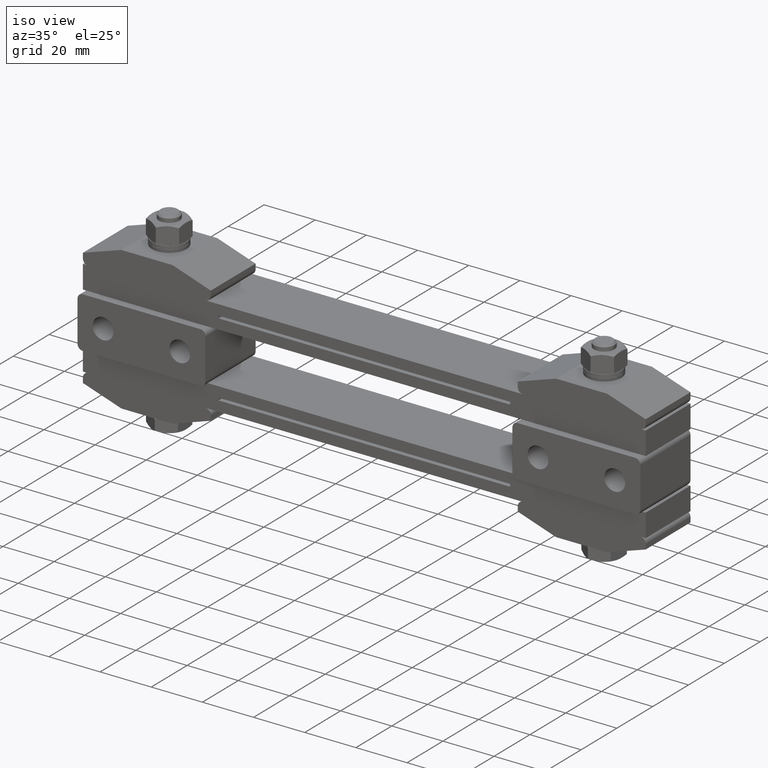
[diagram: clean part render]
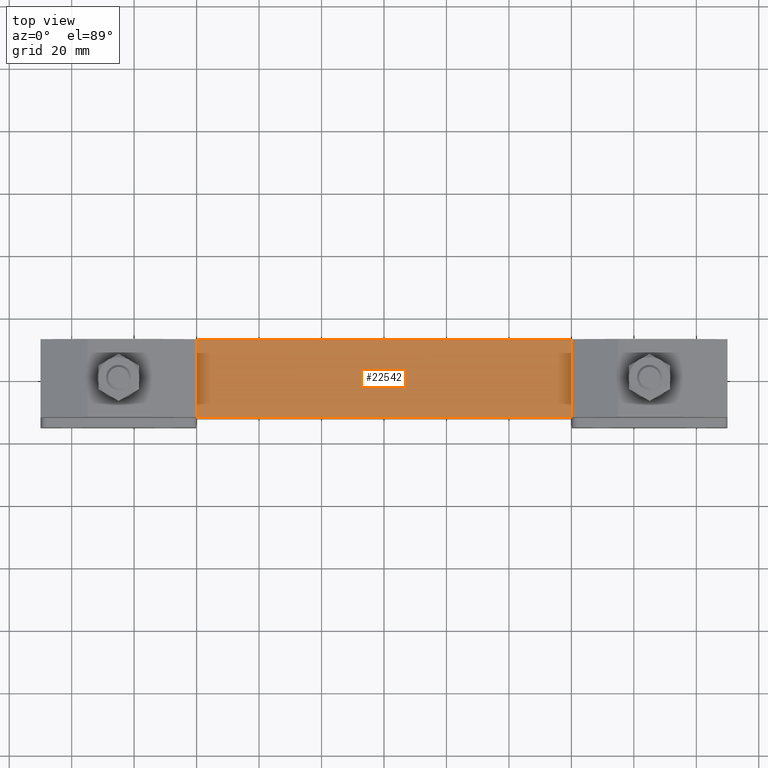
[diagram: tour spotlight — one face highlighted and labeled with its STEP entity id]
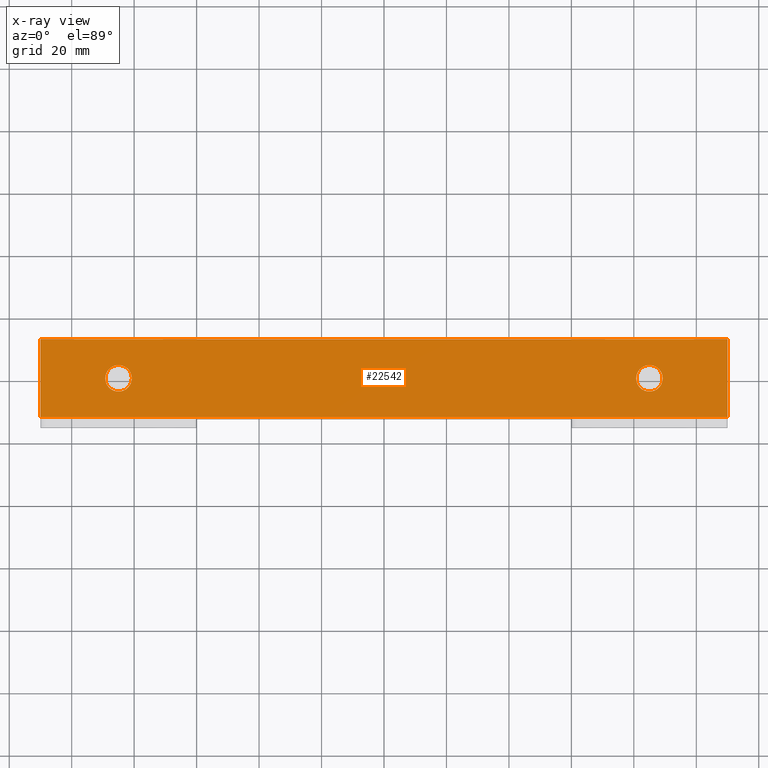
[diagram: x-ray of the same camera — body ghosted, this tour face saturated]
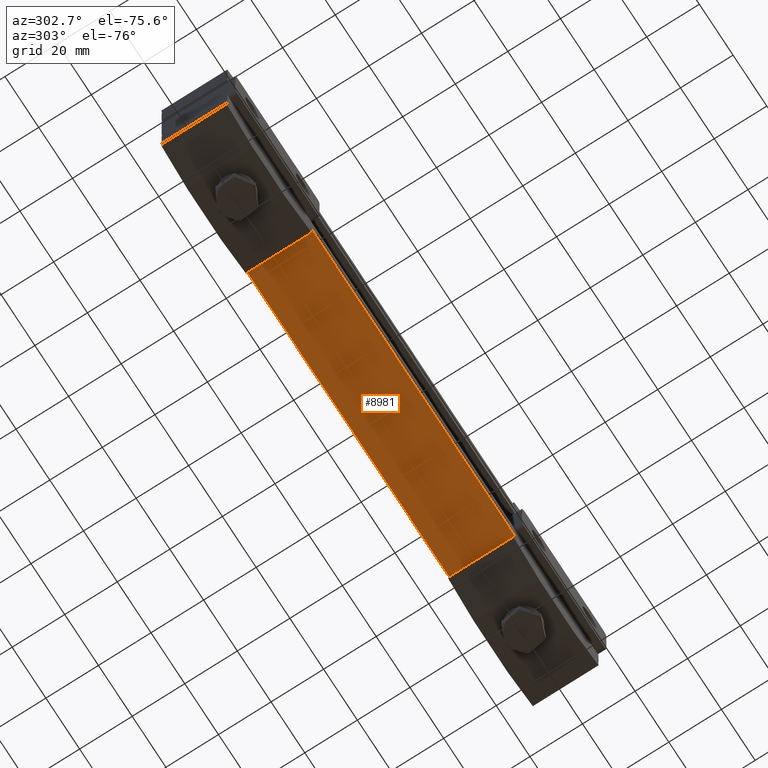
[diagram: tour spotlight — one face highlighted and labeled with its STEP entity id]
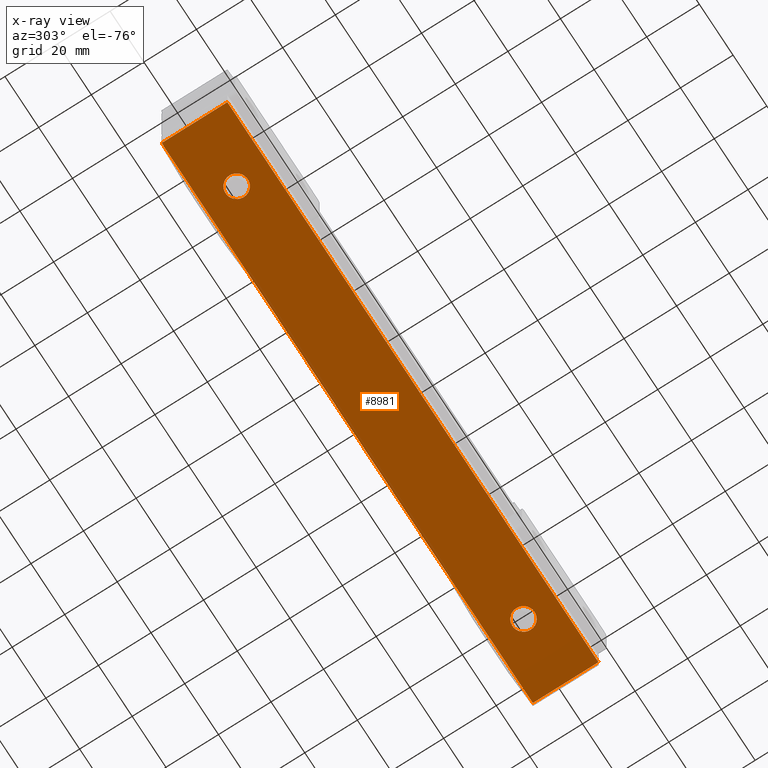
[diagram: x-ray of the same camera — body ghosted, this tour face saturated]
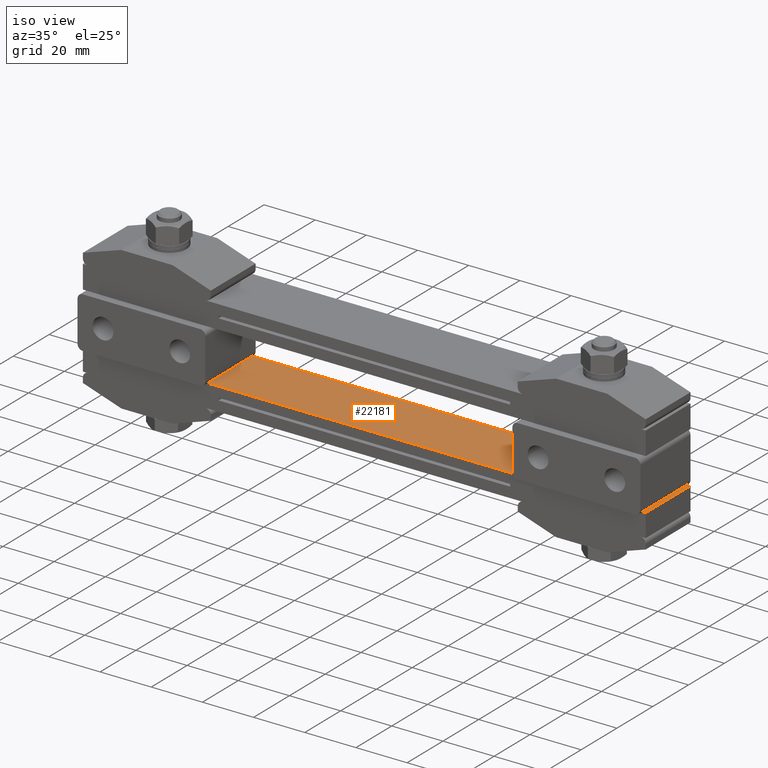
[diagram: tour spotlight — one face highlighted and labeled with its STEP entity id]
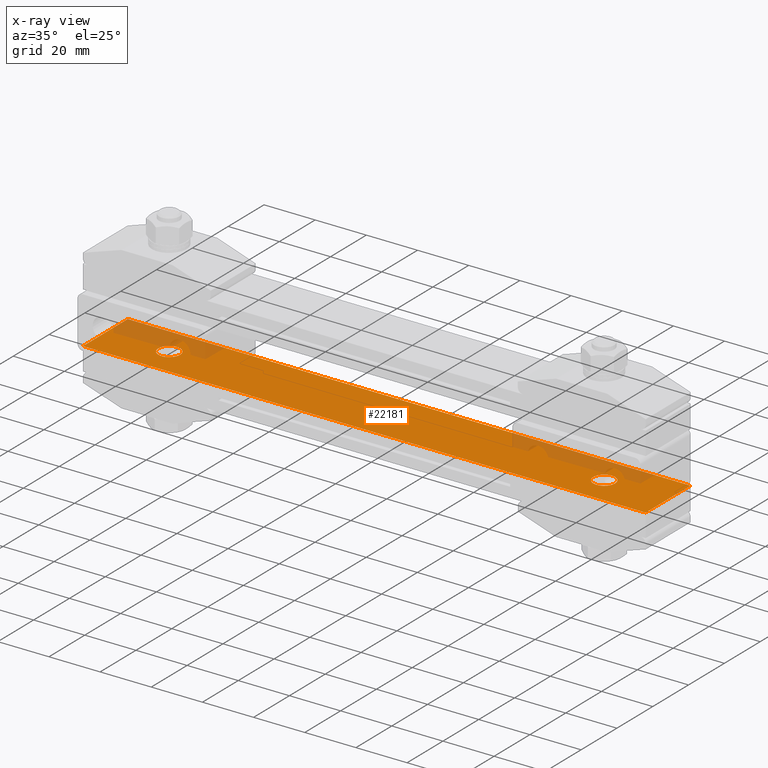
[diagram: x-ray of the same camera — body ghosted, this tour face saturated]
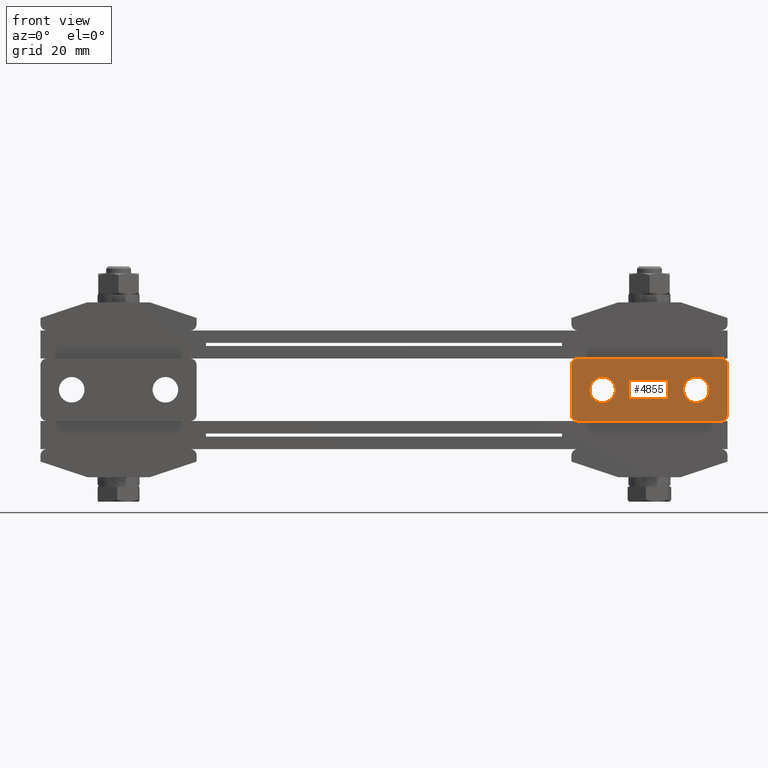
[diagram: tour spotlight — one face highlighted and labeled with its STEP entity id]
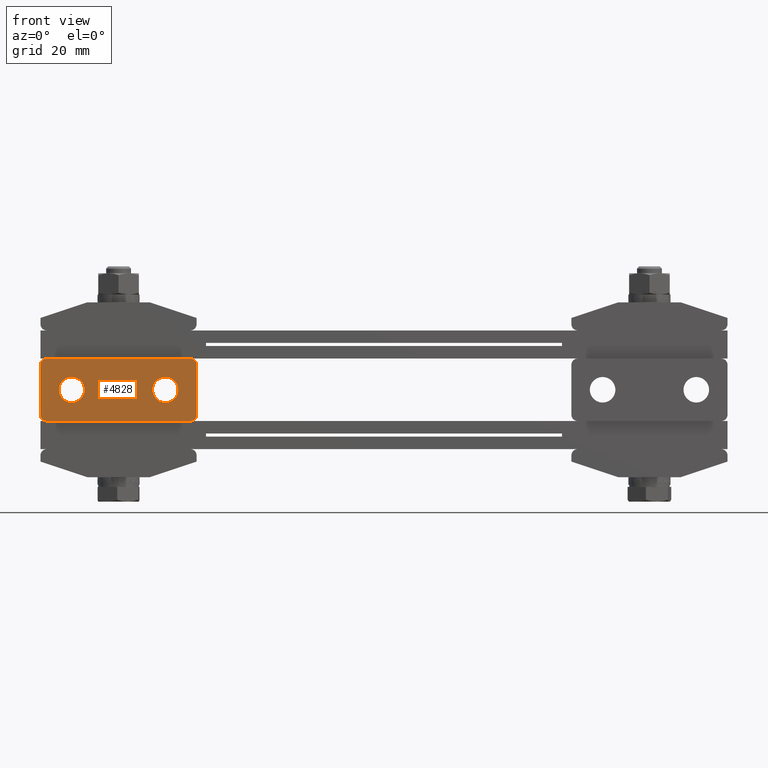
[diagram: tour spotlight — one face highlighted and labeled with its STEP entity id]
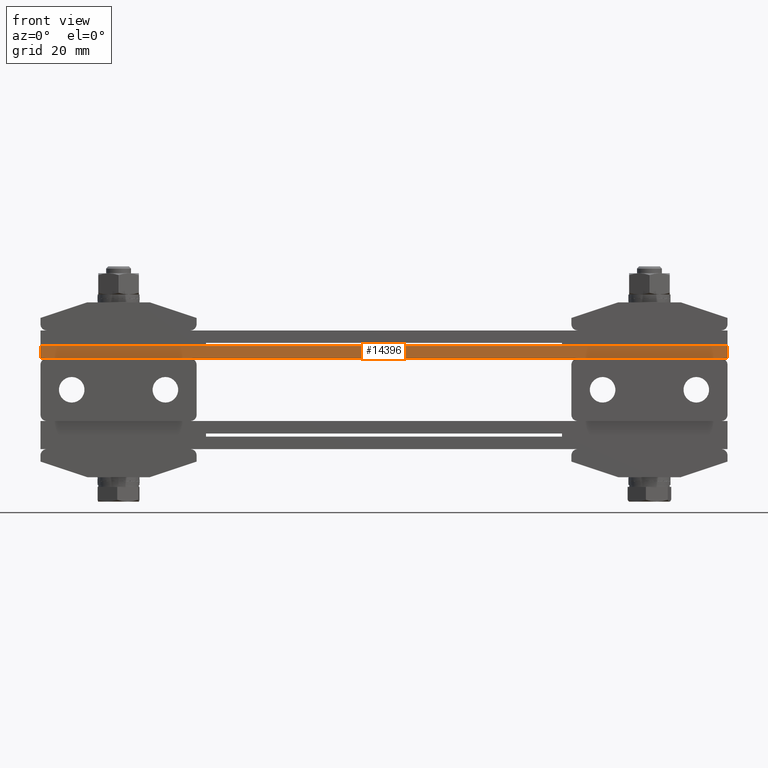
[diagram: tour spotlight — one face highlighted and labeled with its STEP entity id]
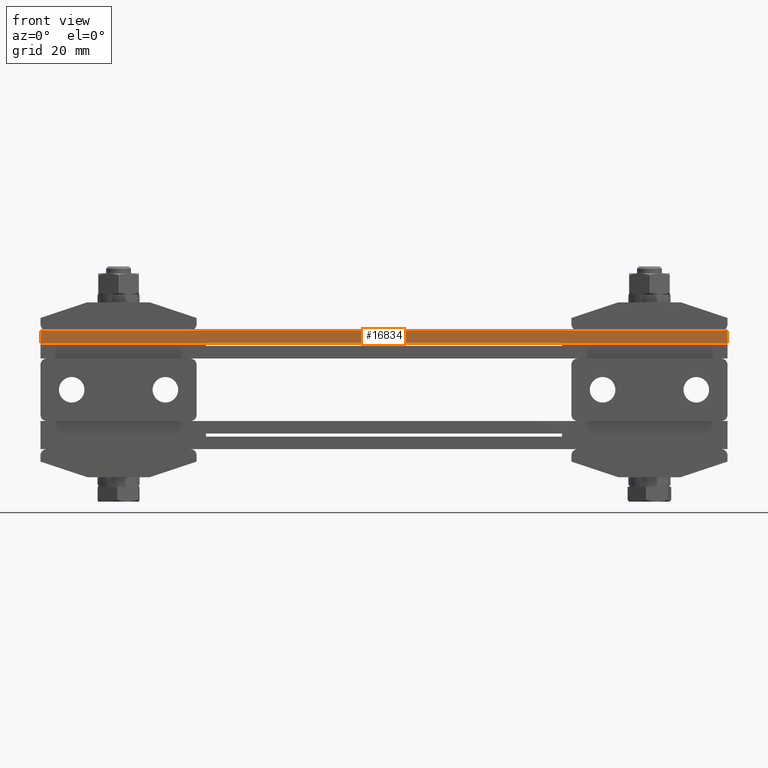
[diagram: tour spotlight — one face highlighted and labeled with its STEP entity id]
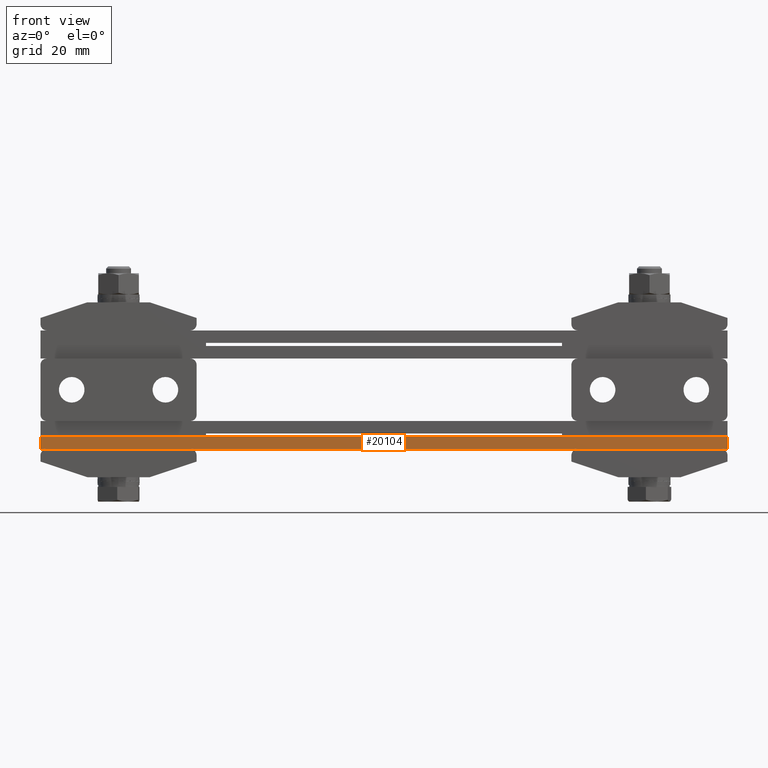
[diagram: tour spotlight — one face highlighted and labeled with its STEP entity id]
A machine part: a face-by-face anatomy tour. The part has 746 B-rep faces; the first image is the clean iso view, then the 8 largest visible faces are spotlighted one at a time (largest first), each with its STEP entity span.

Face 1 — top view, entity #22542. An x-ray twin of the same camera follows (body ghosted, this face saturated) — the face is partly hidden behind the body. In plain terms, the highlighted planar face has unit normal (0, 0, 1).
Definition (entity closure, byte-faithful):
#215 = CARTESIAN_POINT ( 'NONE',  ( -85.00000000000000000, -1.302668910241332000E-015, 33.00000000000000000 ) ) ;
#438 = CARTESIAN_POINT ( 'NONE',  ( -110.0000000000000000, 12.50000000000000000, 33.00000000000000000 ) ) ;
#727 = VERTEX_POINT ( 'NONE', #8517 ) ;
#786 = DIRECTION ( 'NONE',  ( 1.000000000000000000, 0.0000000000000000000, 0.0000000000000000000 ) ) ;
#868 = EDGE_CURVE ( 'NONE', #727, #3184, #5197, .T. ) ;
#1015 = DIRECTION ( 'NONE',  ( 0.0000000000000000000, 0.0000000000000000000, -1.000000000000000000 ) ) ;
#1743 = CARTESIAN_POINT ( 'NONE',  ( 110.0000000000000000, 12.50000000000000000, 33.00000000000000000 ) ) ;
#1813 = ORIENTED_EDGE ( 'NONE', *, *, #3084, .T. ) ;
#2139 = CARTESIAN_POINT ( 'NONE',  ( -80.75000000000000000, -7.821940206037071300E-016, 33.00000000000000000 ) ) ;
#2199 = DIRECTION ( 'NONE',  ( 0.0000000000000000000, -1.000000000000000000, 0.0000000000000000000 ) ) ;
#2478 = VERTEX_POINT ( 'NONE', #2139 ) ;
#2488 = DIRECTION ( 'NONE',  ( 0.0000000000000000000, 0.0000000000000000000, 1.000000000000000000 ) ) ;
#2919 = EDGE_CURVE ( 'NONE', #16886, #12251, #18628, .T. ) ;
#2949 = DIRECTION ( 'NONE',  ( -1.000000000000000000, 0.0000000000000000000, 0.0000000000000000000 ) ) ;
#3009 = DIRECTION ( 'NONE',  ( -1.000000000000000000, 0.0000000000000000000, 0.0000000000000000000 ) ) ;
#3084 = EDGE_CURVE ( 'NONE', #20031, #2478, #10011, .T. ) ;
#3184 = VERTEX_POINT ( 'NONE', #21283 ) ;
#3800 = LINE ( 'NONE', #12096, #12640 ) ;
#3804 = EDGE_CURVE ( 'NONE', #13380, #727, #17421, .T. ) ;
#3983 = VECTOR ( 'NONE', #2199, 1000.000000000000000 ) ;
#4245 = PLANE ( 'NONE',  #8183 ) ;
#4926 = EDGE_CURVE ( 'NONE', #2478, #20031, #8968, .T. ) ;
#5006 = CARTESIAN_POINT ( 'NONE',  ( -85.00000000000000000, -1.302668910241332000E-015, 33.00000000000000000 ) ) ;
#5010 = FACE_OUTER_BOUND ( 'NONE', #16257, .T. ) ;
#5082 = DIRECTION ( 'NONE',  ( 0.0000000000000000000, 0.0000000000000000000, -1.000000000000000000 ) ) ;
#5197 = LINE ( 'NONE', #1743, #22070 ) ;
#5403 = DIRECTION ( 'NONE',  ( 0.0000000000000000000, 0.0000000000000000000, -1.000000000000000000 ) ) ;
#6391 = AXIS2_PLACEMENT_3D ( 'NONE', #215, #5403, #21379 ) ;
#6494 = DIRECTION ( 'NONE',  ( 1.000000000000000000, 0.0000000000000000000, 0.0000000000000000000 ) ) ;
#7163 = AXIS2_PLACEMENT_3D ( 'NONE', #16884, #1015, #2949 ) ;
#8183 = AXIS2_PLACEMENT_3D ( 'NONE', #9438, #2488, #786 ) ;
#8517 = CARTESIAN_POINT ( 'NONE',  ( 110.0000000000000000, -12.50000000000000000, 33.00000000000000000 ) ) ;
#8653 = CARTESIAN_POINT ( 'NONE',  ( 89.25000000000001400, 2.003611399437672300E-014, 33.00000000000000000 ) ) ;
#8825 = ORIENTED_EDGE ( 'NONE', *, *, #12239, .T. ) ;
#8831 = DIRECTION ( 'NONE',  ( 0.0000000000000000000, 1.000000000000000000, 0.0000000000000000000 ) ) ;
#8968 = CIRCLE ( 'NONE', #6391, 4.250000000000003600 ) ;
#9143 = AXIS2_PLACEMENT_3D ( 'NONE', #5006, #5082, #17714 ) ;
#9438 = CARTESIAN_POINT ( 'NONE',  ( -110.0000000000000000, -12.50000000000000000, 33.00000000000000000 ) ) ;
#10011 = CIRCLE ( 'NONE', #9143, 4.250000000000003600 ) ;
#10163 = CARTESIAN_POINT ( 'NONE',  ( 85.00000000000000000, 1.951563910473909900E-014, 33.00000000000000000 ) ) ;
#11160 = CARTESIAN_POINT ( 'NONE',  ( -110.0000000000000000, -12.50000000000000000, 33.00000000000000000 ) ) ;
#11241 = CARTESIAN_POINT ( 'NONE',  ( 80.75000000000000000, 1.951563910473909900E-014, 33.00000000000000000 ) ) ;
#11999 = EDGE_LOOP ( 'NONE', ( #15445, #17835 ) ) ;
#12017 = DIRECTION ( 'NONE',  ( -1.000000000000000000, 5.519574696289839900E-017, 0.0000000000000000000 ) ) ;
#12096 = CARTESIAN_POINT ( 'NONE',  ( -110.0000000000000000, 12.50000000000000000, 33.00000000000000000 ) ) ;
#12239 = EDGE_CURVE ( 'NONE', #3184, #21371, #3800, .T. ) ;
#12251 = VERTEX_POINT ( 'NONE', #8653 ) ;
#12640 = VECTOR ( 'NONE', #12017, 1000.000000000000000 ) ;
#12677 = AXIS2_PLACEMENT_3D ( 'NONE', #10163, #22547, #3009 ) ;
#13357 = ORIENTED_EDGE ( 'NONE', *, *, #15480, .T. ) ;
#13380 = VERTEX_POINT ( 'NONE', #11160 ) ;
#15445 = ORIENTED_EDGE ( 'NONE', *, *, #2919, .T. ) ;
#15478 = CIRCLE ( 'NONE', #7163, 4.250000000000003600 ) ;
#15480 = EDGE_CURVE ( 'NONE', #21371, #13380, #16394, .T. ) ;
#16257 = EDGE_LOOP ( 'NONE', ( #13357, #19918, #20294, #8825 ) ) ;
#16279 = EDGE_LOOP ( 'NONE', ( #1813, #21018 ) ) ;
#16394 = LINE ( 'NONE', #19692, #3983 ) ;
#16884 = CARTESIAN_POINT ( 'NONE',  ( 85.00000000000000000, 1.951563910473909900E-014, 33.00000000000000000 ) ) ;
#16886 = VERTEX_POINT ( 'NONE', #11241 ) ;
#17406 = FACE_BOUND ( 'NONE', #11999, .T. ) ;
#17421 = LINE ( 'NONE', #20383, #21304 ) ;
#17714 = DIRECTION ( 'NONE',  ( -1.000000000000000000, 0.0000000000000000000, 0.0000000000000000000 ) ) ;
#17835 = ORIENTED_EDGE ( 'NONE', *, *, #22690, .T. ) ;
#18628 = CIRCLE ( 'NONE', #12677, 4.250000000000003600 ) ;
#19071 = FACE_BOUND ( 'NONE', #16279, .T. ) ;
#19692 = CARTESIAN_POINT ( 'NONE',  ( -110.0000000000000000, 12.50000000000000000, 33.00000000000000000 ) ) ;
#19918 = ORIENTED_EDGE ( 'NONE', *, *, #3804, .T. ) ;
#20031 = VERTEX_POINT ( 'NONE', #22420 ) ;
#20294 = ORIENTED_EDGE ( 'NONE', *, *, #868, .T. ) ;
#20383 = CARTESIAN_POINT ( 'NONE',  ( -110.0000000000000000, -12.50000000000000000, 33.00000000000000000 ) ) ;
#21018 = ORIENTED_EDGE ( 'NONE', *, *, #4926, .T. ) ;
#21283 = CARTESIAN_POINT ( 'NONE',  ( 110.0000000000000000, 12.50000000000000000, 33.00000000000000000 ) ) ;
#21304 = VECTOR ( 'NONE', #6494, 1000.000000000000000 ) ;
#21371 = VERTEX_POINT ( 'NONE', #438 ) ;
#21379 = DIRECTION ( 'NONE',  ( -1.000000000000000000, 0.0000000000000000000, 0.0000000000000000000 ) ) ;
#22070 = VECTOR ( 'NONE', #8831, 1000.000000000000000 ) ;
#22420 = CARTESIAN_POINT ( 'NONE',  ( -89.25000000000001400, -1.302668910241332000E-015, 33.00000000000000000 ) ) ;
#22542 = ADVANCED_FACE ( 'NONE', ( #19071, #17406, #5010 ), #4245, .T. ) ;
#22547 = DIRECTION ( 'NONE',  ( 0.0000000000000000000, 0.0000000000000000000, -1.000000000000000000 ) ) ;
#22690 = EDGE_CURVE ( 'NONE', #12251, #16886, #15478, .T. ) ;

Face 2 — auxiliary view, entity #8981. An x-ray twin of the same camera follows (body ghosted, this face saturated) — the face is partly hidden behind the body. In plain terms, the highlighted planar face has unit normal (0, 0, 1).
Definition (entity closure, byte-faithful):
#401 = DIRECTION ( 'NONE',  ( 1.000000000000000000, 0.0000000000000000000, 0.0000000000000000000 ) ) ;
#425 = DIRECTION ( 'NONE',  ( 0.0000000000000000000, 0.0000000000000000000, -1.000000000000000000 ) ) ;
#506 = VERTEX_POINT ( 'NONE', #10991 ) ;
#988 = ORIENTED_EDGE ( 'NONE', *, *, #17589, .F. ) ;
#1237 = VERTEX_POINT ( 'NONE', #4661 ) ;
#1764 = EDGE_CURVE ( 'NONE', #10625, #1237, #12292, .T. ) ;
#1877 = VECTOR ( 'NONE', #13870, 1000.000000000000000 ) ;
#2097 = CIRCLE ( 'NONE', #20574, 4.250000000000003600 ) ;
#3668 = EDGE_LOOP ( 'NONE', ( #8556, #22800 ) ) ;
#4267 = CARTESIAN_POINT ( 'NONE',  ( -85.00000000000000000, 0.0000000000000000000, -5.000000000000000000 ) ) ;
#4287 = PLANE ( 'NONE',  #13334 ) ;
#4661 = CARTESIAN_POINT ( 'NONE',  ( -110.0000000000000000, -12.50000000000000000, -5.000000000000000000 ) ) ;
#4812 = EDGE_LOOP ( 'NONE', ( #16802, #22518, #15263, #21425 ) ) ;
#4924 = CARTESIAN_POINT ( 'NONE',  ( 89.25000000000001400, 2.133878290461802200E-014, -5.000000000000000000 ) ) ;
#5344 = AXIS2_PLACEMENT_3D ( 'NONE', #4267, #18703, #13208 ) ;
#5715 = CARTESIAN_POINT ( 'NONE',  ( -110.0000000000000000, 12.50000000000000000, -5.000000000000000000 ) ) ;
#5970 = DIRECTION ( 'NONE',  ( 0.0000000000000000000, 0.0000000000000000000, -1.000000000000000000 ) ) ;
#6276 = EDGE_CURVE ( 'NONE', #8608, #10625, #14993, .T. ) ;
#6608 = CIRCLE ( 'NONE', #5344, 4.250000000000003600 ) ;
#6918 = DIRECTION ( 'NONE',  ( 0.0000000000000000000, 0.0000000000000000000, -1.000000000000000000 ) ) ;
#7165 = LINE ( 'NONE', #14533, #19004 ) ;
#7325 = DIRECTION ( 'NONE',  ( -1.000000000000000000, 0.0000000000000000000, 0.0000000000000000000 ) ) ;
#7551 = CARTESIAN_POINT ( 'NONE',  ( -85.00000000000000000, 0.0000000000000000000, -5.000000000000000000 ) ) ;
#7679 = CARTESIAN_POINT ( 'NONE',  ( 85.00000000000000000, 2.081830801498040100E-014, -5.000000000000000000 ) ) ;
#8490 = CARTESIAN_POINT ( 'NONE',  ( 110.0000000000000000, 12.50000000000000000, -5.000000000000000000 ) ) ;
#8556 = ORIENTED_EDGE ( 'NONE', *, *, #14797, .F. ) ;
#8608 = VERTEX_POINT ( 'NONE', #16288 ) ;
#8981 = ADVANCED_FACE ( 'NONE', ( #13744, #18471, #21514 ), #4287, .F. ) ;
#9009 = AXIS2_PLACEMENT_3D ( 'NONE', #7551, #425, #7325 ) ;
#9112 = CARTESIAN_POINT ( 'NONE',  ( -110.0000000000000000, 12.50000000000000000, -5.000000000000000000 ) ) ;
#9264 = CARTESIAN_POINT ( 'NONE',  ( -89.25000000000001400, 0.0000000000000000000, -5.000000000000000000 ) ) ;
#9616 = DIRECTION ( 'NONE',  ( 1.000000000000000000, 0.0000000000000000000, 0.0000000000000000000 ) ) ;
#9700 = EDGE_CURVE ( 'NONE', #20521, #8608, #14835, .T. ) ;
#9725 = CARTESIAN_POINT ( 'NONE',  ( 110.0000000000000000, -12.50000000000000000, -5.000000000000000000 ) ) ;
#10625 = VERTEX_POINT ( 'NONE', #9112 ) ;
#10752 = EDGE_CURVE ( 'NONE', #19561, #506, #2097, .T. ) ;
#10991 = CARTESIAN_POINT ( 'NONE',  ( 80.75000000000000000, 2.081830801498040100E-014, -5.000000000000000000 ) ) ;
#11392 = AXIS2_PLACEMENT_3D ( 'NONE', #22738, #6918, #22824 ) ;
#12292 = LINE ( 'NONE', #13477, #22281 ) ;
#12326 = VERTEX_POINT ( 'NONE', #18158 ) ;
#12783 = VECTOR ( 'NONE', #19808, 1000.000000000000000 ) ;
#13208 = DIRECTION ( 'NONE',  ( -1.000000000000000000, 0.0000000000000000000, 0.0000000000000000000 ) ) ;
#13334 = AXIS2_PLACEMENT_3D ( 'NONE', #20102, #18558, #9616 ) ;
#13477 = CARTESIAN_POINT ( 'NONE',  ( -110.0000000000000000, 12.50000000000000000, -5.000000000000000000 ) ) ;
#13637 = ORIENTED_EDGE ( 'NONE', *, *, #10752, .F. ) ;
#13744 = FACE_BOUND ( 'NONE', #3668, .T. ) ;
#13870 = DIRECTION ( 'NONE',  ( 0.0000000000000000000, 1.000000000000000000, 0.0000000000000000000 ) ) ;
#14533 = CARTESIAN_POINT ( 'NONE',  ( -110.0000000000000000, -12.50000000000000000, -5.000000000000000000 ) ) ;
#14797 = EDGE_CURVE ( 'NONE', #17252, #12326, #18494, .T. ) ;
#14835 = LINE ( 'NONE', #8490, #1877 ) ;
#14993 = LINE ( 'NONE', #5715, #12783 ) ;
#15263 = ORIENTED_EDGE ( 'NONE', *, *, #9700, .F. ) ;
#15265 = DIRECTION ( 'NONE',  ( 0.0000000000000000000, -1.000000000000000000, 0.0000000000000000000 ) ) ;
#15413 = EDGE_CURVE ( 'NONE', #1237, #20521, #7165, .T. ) ;
#16288 = CARTESIAN_POINT ( 'NONE',  ( 110.0000000000000000, 12.50000000000000000, -5.000000000000000000 ) ) ;
#16437 = DIRECTION ( 'NONE',  ( -1.000000000000000000, 0.0000000000000000000, 0.0000000000000000000 ) ) ;
#16802 = ORIENTED_EDGE ( 'NONE', *, *, #1764, .F. ) ;
#17252 = VERTEX_POINT ( 'NONE', #9264 ) ;
#17589 = EDGE_CURVE ( 'NONE', #506, #19561, #17640, .T. ) ;
#17640 = CIRCLE ( 'NONE', #11392, 4.250000000000003600 ) ;
#17905 = EDGE_CURVE ( 'NONE', #12326, #17252, #6608, .T. ) ;
#18158 = CARTESIAN_POINT ( 'NONE',  ( -80.75000000000000000, 5.204748896376247700E-016, -5.000000000000000000 ) ) ;
#18471 = FACE_BOUND ( 'NONE', #19974, .T. ) ;
#18494 = CIRCLE ( 'NONE', #9009, 4.250000000000003600 ) ;
#18558 = DIRECTION ( 'NONE',  ( 0.0000000000000000000, 0.0000000000000000000, 1.000000000000000000 ) ) ;
#18703 = DIRECTION ( 'NONE',  ( 0.0000000000000000000, 0.0000000000000000000, -1.000000000000000000 ) ) ;
#19004 = VECTOR ( 'NONE', #401, 1000.000000000000000 ) ;
#19561 = VERTEX_POINT ( 'NONE', #4924 ) ;
#19808 = DIRECTION ( 'NONE',  ( -1.000000000000000000, 5.519574696289839900E-017, 0.0000000000000000000 ) ) ;
#19974 = EDGE_LOOP ( 'NONE', ( #988, #13637 ) ) ;
#20102 = CARTESIAN_POINT ( 'NONE',  ( -110.0000000000000000, -12.50000000000000000, -5.000000000000000000 ) ) ;
#20521 = VERTEX_POINT ( 'NONE', #9725 ) ;
#20574 = AXIS2_PLACEMENT_3D ( 'NONE', #7679, #5970, #16437 ) ;
#21425 = ORIENTED_EDGE ( 'NONE', *, *, #15413, .F. ) ;
#21514 = FACE_OUTER_BOUND ( 'NONE', #4812, .T. ) ;
#22281 = VECTOR ( 'NONE', #15265, 1000.000000000000000 ) ;
#22518 = ORIENTED_EDGE ( 'NONE', *, *, #6276, .F. ) ;
#22738 = CARTESIAN_POINT ( 'NONE',  ( 85.00000000000000000, 2.081830801498040100E-014, -5.000000000000000000 ) ) ;
#22800 = ORIENTED_EDGE ( 'NONE', *, *, #17905, .F. ) ;
#22824 = DIRECTION ( 'NONE',  ( -1.000000000000000000, 0.0000000000000000000, 0.0000000000000000000 ) ) ;

Face 3 — iso view, entity #22181. An x-ray twin of the same camera follows (body ghosted, this face saturated) — the face is partly hidden behind the body. In plain terms, the highlighted planar face has unit normal (0, 0, 1).
Definition (entity closure, byte-faithful):
#334 = VECTOR ( 'NONE', #10627, 1000.000000000000000 ) ;
#518 = VECTOR ( 'NONE', #7377, 1000.000000000000000 ) ;
#1020 = EDGE_CURVE ( 'NONE', #2717, #1428, #22916, .T. ) ;
#1025 = DIRECTION ( 'NONE',  ( -1.000000000000000000, 0.0000000000000000000, 0.0000000000000000000 ) ) ;
#1428 = VERTEX_POINT ( 'NONE', #15801 ) ;
#1791 = EDGE_LOOP ( 'NONE', ( #7671, #22118, #7528, #11441 ) ) ;
#2717 = VERTEX_POINT ( 'NONE', #5651 ) ;
#2941 = CIRCLE ( 'NONE', #10926, 4.250000000000003600 ) ;
#2961 = CARTESIAN_POINT ( 'NONE',  ( -85.00000000000000000, 0.0000000000000000000, 4.000000000000000000 ) ) ;
#2979 = VERTEX_POINT ( 'NONE', #13422 ) ;
#3091 = EDGE_CURVE ( 'NONE', #2979, #17431, #17740, .T. ) ;
#3825 = EDGE_CURVE ( 'NONE', #21692, #5224, #9169, .T. ) ;
#3971 = EDGE_CURVE ( 'NONE', #5224, #21692, #2941, .T. ) ;
#4019 = EDGE_CURVE ( 'NONE', #1428, #2979, #20363, .T. ) ;
#4166 = AXIS2_PLACEMENT_3D ( 'NONE', #20248, #11943, #18848 ) ;
#4203 = FACE_BOUND ( 'NONE', #18308, .T. ) ;
#5224 = VERTEX_POINT ( 'NONE', #18505 ) ;
#5651 = CARTESIAN_POINT ( 'NONE',  ( 110.0000000000000000, -12.50000000000000000, 4.000000000000000000 ) ) ;
#6140 = PLANE ( 'NONE',  #4166 ) ;
#6158 = AXIS2_PLACEMENT_3D ( 'NONE', #18441, #20194, #15021 ) ;
#6642 = DIRECTION ( 'NONE',  ( -1.000000000000000000, 0.0000000000000000000, 0.0000000000000000000 ) ) ;
#6698 = ORIENTED_EDGE ( 'NONE', *, *, #3971, .T. ) ;
#6719 = CARTESIAN_POINT ( 'NONE',  ( 85.00000000000000000, 2.081830801498040100E-014, 4.000000000000000000 ) ) ;
#6880 = EDGE_CURVE ( 'NONE', #17431, #2717, #22390, .T. ) ;
#7331 = CARTESIAN_POINT ( 'NONE',  ( -110.0000000000000000, 12.50000000000000000, 4.000000000000000000 ) ) ;
#7377 = DIRECTION ( 'NONE',  ( 0.0000000000000000000, 1.000000000000000000, 0.0000000000000000000 ) ) ;
#7480 = DIRECTION ( 'NONE',  ( 1.000000000000000000, 0.0000000000000000000, 0.0000000000000000000 ) ) ;
#7528 = ORIENTED_EDGE ( 'NONE', *, *, #1020, .T. ) ;
#7671 = ORIENTED_EDGE ( 'NONE', *, *, #3091, .T. ) ;
#8241 = CARTESIAN_POINT ( 'NONE',  ( -110.0000000000000000, -12.50000000000000000, 4.000000000000000000 ) ) ;
#8525 = VERTEX_POINT ( 'NONE', #19477 ) ;
#8685 = DIRECTION ( 'NONE',  ( -1.000000000000000000, 0.0000000000000000000, 0.0000000000000000000 ) ) ;
#9169 = CIRCLE ( 'NONE', #13293, 4.250000000000003600 ) ;
#9331 = VECTOR ( 'NONE', #19506, 1000.000000000000000 ) ;
#10627 = DIRECTION ( 'NONE',  ( 0.0000000000000000000, -1.000000000000000000, 0.0000000000000000000 ) ) ;
#10663 = CIRCLE ( 'NONE', #19127, 4.250000000000003600 ) ;
#10926 = AXIS2_PLACEMENT_3D ( 'NONE', #6719, #19192, #6642 ) ;
#11441 = ORIENTED_EDGE ( 'NONE', *, *, #4019, .T. ) ;
#11943 = DIRECTION ( 'NONE',  ( 0.0000000000000000000, 0.0000000000000000000, 1.000000000000000000 ) ) ;
#13143 = EDGE_CURVE ( 'NONE', #18011, #8525, #20796, .T. ) ;
#13236 = EDGE_LOOP ( 'NONE', ( #21328, #21478 ) ) ;
#13293 = AXIS2_PLACEMENT_3D ( 'NONE', #18823, #20598, #8685 ) ;
#13422 = CARTESIAN_POINT ( 'NONE',  ( -110.0000000000000000, 12.50000000000000000, 4.000000000000000000 ) ) ;
#13583 = FACE_OUTER_BOUND ( 'NONE', #1791, .T. ) ;
#15021 = DIRECTION ( 'NONE',  ( -1.000000000000000000, 0.0000000000000000000, 0.0000000000000000000 ) ) ;
#15801 = CARTESIAN_POINT ( 'NONE',  ( 110.0000000000000000, 12.50000000000000000, 4.000000000000000000 ) ) ;
#15944 = CARTESIAN_POINT ( 'NONE',  ( -110.0000000000000000, 12.50000000000000000, 4.000000000000000000 ) ) ;
#16374 = EDGE_CURVE ( 'NONE', #8525, #18011, #10663, .T. ) ;
#17106 = VECTOR ( 'NONE', #7480, 1000.000000000000000 ) ;
#17316 = CARTESIAN_POINT ( 'NONE',  ( 89.25000000000001400, 2.133878290461802200E-014, 4.000000000000000000 ) ) ;
#17431 = VERTEX_POINT ( 'NONE', #8241 ) ;
#17646 = CARTESIAN_POINT ( 'NONE',  ( -110.0000000000000000, -12.50000000000000000, 4.000000000000000000 ) ) ;
#17740 = LINE ( 'NONE', #7331, #334 ) ;
#17922 = CARTESIAN_POINT ( 'NONE',  ( 110.0000000000000000, 12.50000000000000000, 4.000000000000000000 ) ) ;
#17985 = ORIENTED_EDGE ( 'NONE', *, *, #3825, .T. ) ;
#18011 = VERTEX_POINT ( 'NONE', #20615 ) ;
#18308 = EDGE_LOOP ( 'NONE', ( #6698, #17985 ) ) ;
#18441 = CARTESIAN_POINT ( 'NONE',  ( -85.00000000000000000, 0.0000000000000000000, 4.000000000000000000 ) ) ;
#18505 = CARTESIAN_POINT ( 'NONE',  ( 80.75000000000000000, 2.081830801498040100E-014, 4.000000000000000000 ) ) ;
#18823 = CARTESIAN_POINT ( 'NONE',  ( 85.00000000000000000, 2.081830801498040100E-014, 4.000000000000000000 ) ) ;
#18848 = DIRECTION ( 'NONE',  ( 1.000000000000000000, 0.0000000000000000000, 0.0000000000000000000 ) ) ;
#19127 = AXIS2_PLACEMENT_3D ( 'NONE', #2961, #20324, #1025 ) ;
#19192 = DIRECTION ( 'NONE',  ( 0.0000000000000000000, 0.0000000000000000000, -1.000000000000000000 ) ) ;
#19477 = CARTESIAN_POINT ( 'NONE',  ( -89.25000000000001400, 0.0000000000000000000, 4.000000000000000000 ) ) ;
#19506 = DIRECTION ( 'NONE',  ( -1.000000000000000000, 5.519574696289839900E-017, 0.0000000000000000000 ) ) ;
#19656 = FACE_BOUND ( 'NONE', #13236, .T. ) ;
#20194 = DIRECTION ( 'NONE',  ( 0.0000000000000000000, 0.0000000000000000000, -1.000000000000000000 ) ) ;
#20248 = CARTESIAN_POINT ( 'NONE',  ( -110.0000000000000000, -12.50000000000000000, 4.000000000000000000 ) ) ;
#20324 = DIRECTION ( 'NONE',  ( 0.0000000000000000000, 0.0000000000000000000, -1.000000000000000000 ) ) ;
#20363 = LINE ( 'NONE', #15944, #9331 ) ;
#20598 = DIRECTION ( 'NONE',  ( 0.0000000000000000000, 0.0000000000000000000, -1.000000000000000000 ) ) ;
#20615 = CARTESIAN_POINT ( 'NONE',  ( -80.75000000000000000, 5.204748896376247700E-016, 4.000000000000000000 ) ) ;
#20796 = CIRCLE ( 'NONE', #6158, 4.250000000000003600 ) ;
#21328 = ORIENTED_EDGE ( 'NONE', *, *, #16374, .T. ) ;
#21478 = ORIENTED_EDGE ( 'NONE', *, *, #13143, .T. ) ;
#21692 = VERTEX_POINT ( 'NONE', #17316 ) ;
#22118 = ORIENTED_EDGE ( 'NONE', *, *, #6880, .T. ) ;
#22181 = ADVANCED_FACE ( 'NONE', ( #19656, #4203, #13583 ), #6140, .T. ) ;
#22390 = LINE ( 'NONE', #17646, #17106 ) ;
#22916 = LINE ( 'NONE', #17922, #518 ) ;

Face 4 — front view, entity #4855. In plain terms, the highlighted planar face has unit normal (0, 1, 0).
Definition (entity closure, byte-faithful):
#402 = ORIENTED_EDGE ( 'NONE', *, *, #17727, .F. ) ;
#487 = VERTEX_POINT ( 'NONE', #19709 ) ;
#763 = VERTEX_POINT ( 'NONE', #10286 ) ;
#855 = AXIS2_PLACEMENT_3D ( 'NONE', #2800, #17126, #18769 ) ;
#945 = CARTESIAN_POINT ( 'NONE',  ( 100.0000000000000000, -15.50000000000000000, 18.10000000000000100 ) ) ;
#983 = CIRCLE ( 'NONE', #18667, 2.000000000000000000 ) ;
#1037 = ORIENTED_EDGE ( 'NONE', *, *, #20836, .T. ) ;
#1084 = ORIENTED_EDGE ( 'NONE', *, *, #20629, .T. ) ;
#1306 = LINE ( 'NONE', #1465, #11224 ) ;
#1392 = AXIS2_PLACEMENT_3D ( 'NONE', #17999, #12504, #8985 ) ;
#1414 = ORIENTED_EDGE ( 'NONE', *, *, #8314, .T. ) ;
#1465 = CARTESIAN_POINT ( 'NONE',  ( 110.0000000000000000, -15.50000000000000000, 24.00000000000000000 ) ) ;
#1628 = CARTESIAN_POINT ( 'NONE',  ( 100.0000000000000000, -15.50000000000000000, 9.899999999999998600 ) ) ;
#1827 = EDGE_LOOP ( 'NONE', ( #15080, #4597 ) ) ;
#2014 = ORIENTED_EDGE ( 'NONE', *, *, #19731, .T. ) ;
#2722 = ORIENTED_EDGE ( 'NONE', *, *, #10725, .T. ) ;
#2800 = CARTESIAN_POINT ( 'NONE',  ( 70.00000000000000000, -15.50000000000000000, 14.00000000000000000 ) ) ;
#3122 = DIRECTION ( 'NONE',  ( 0.0000000000000000000, 0.0000000000000000000, 1.000000000000000000 ) ) ;
#3253 = AXIS2_PLACEMENT_3D ( 'NONE', #12387, #10633, #21373 ) ;
#3511 = ORIENTED_EDGE ( 'NONE', *, *, #5857, .T. ) ;
#3518 = DIRECTION ( 'NONE',  ( 1.000000000000000000, 0.0000000000000000000, 0.0000000000000000000 ) ) ;
#3586 = CARTESIAN_POINT ( 'NONE',  ( 110.0000000000000000, -15.50000000000000000, 6.000000000000000000 ) ) ;
#3702 = AXIS2_PLACEMENT_3D ( 'NONE', #22719, #19227, #5418 ) ;
#3722 = EDGE_CURVE ( 'NONE', #10298, #11452, #15217, .T. ) ;
#3730 = CARTESIAN_POINT ( 'NONE',  ( 62.00000000000000000, -15.50000000000000000, 4.000000000000000000 ) ) ;
#4264 = FACE_BOUND ( 'NONE', #9022, .T. ) ;
#4342 = CARTESIAN_POINT ( 'NONE',  ( 60.00000000000000000, -15.50000000000000000, 22.00000000000000000 ) ) ;
#4393 = VECTOR ( 'NONE', #9328, 1000.000000000000000 ) ;
#4597 = ORIENTED_EDGE ( 'NONE', *, *, #3722, .T. ) ;
#4788 = DIRECTION ( 'NONE',  ( 0.0000000000000000000, 0.0000000000000000000, 1.000000000000000000 ) ) ;
#4855 = ADVANCED_FACE ( 'NONE', ( #11698, #4264, #7609 ), #17418, .F. ) ;
#5242 = CARTESIAN_POINT ( 'NONE',  ( 60.00000000000000000, -15.50000000000000000, 24.00000000000000000 ) ) ;
#5356 = CARTESIAN_POINT ( 'NONE',  ( 60.00000000000000000, -15.50000000000000000, 24.00000000000000000 ) ) ;
#5382 = VECTOR ( 'NONE', #10586, 1000.000000000000000 ) ;
#5418 = DIRECTION ( 'NONE',  ( 0.0000000000000000000, 0.0000000000000000000, 1.000000000000000000 ) ) ;
#5516 = CARTESIAN_POINT ( 'NONE',  ( 60.00000000000000000, -15.50000000000000000, 4.000000000000000000 ) ) ;
#5711 = EDGE_CURVE ( 'NONE', #10856, #22375, #14762, .T. ) ;
#5857 = EDGE_CURVE ( 'NONE', #9053, #10856, #7034, .T. ) ;
#5953 = AXIS2_PLACEMENT_3D ( 'NONE', #19166, #15458, #3122 ) ;
#6339 = LINE ( 'NONE', #5516, #4393 ) ;
#6828 = AXIS2_PLACEMENT_3D ( 'NONE', #19037, #13563, #4788 ) ;
#7034 = CIRCLE ( 'NONE', #1392, 2.000000000000001800 ) ;
#7072 = VERTEX_POINT ( 'NONE', #11518 ) ;
#7439 = EDGE_LOOP ( 'NONE', ( #2014, #1084, #17705, #1037, #402, #3511, #20306, #2722 ) ) ;
#7609 = FACE_OUTER_BOUND ( 'NONE', #7439, .T. ) ;
#8314 = EDGE_CURVE ( 'NONE', #16711, #12467, #10478, .T. ) ;
#8341 = DIRECTION ( 'NONE',  ( 0.0000000000000000000, 0.0000000000000000000, -1.000000000000000000 ) ) ;
#8985 = DIRECTION ( 'NONE',  ( 0.0000000000000000000, 0.0000000000000000000, 1.000000000000000000 ) ) ;
#9022 = EDGE_LOOP ( 'NONE', ( #20978, #1414 ) ) ;
#9053 = VERTEX_POINT ( 'NONE', #17141 ) ;
#9328 = DIRECTION ( 'NONE',  ( 1.000000000000000000, 0.0000000000000000000, 0.0000000000000000000 ) ) ;
#9608 = EDGE_CURVE ( 'NONE', #487, #17706, #1306, .T. ) ;
#9772 = DIRECTION ( 'NONE',  ( 0.0000000000000000000, 0.0000000000000000000, 1.000000000000000000 ) ) ;
#10286 = CARTESIAN_POINT ( 'NONE',  ( 108.0000000000000000, -15.50000000000000000, 4.000000000000000000 ) ) ;
#10298 = VERTEX_POINT ( 'NONE', #12947 ) ;
#10478 = CIRCLE ( 'NONE', #21322, 4.100000000000001400 ) ;
#10576 = CARTESIAN_POINT ( 'NONE',  ( 60.00000000000000000, -15.50000000000000000, 6.000000000000000000 ) ) ;
#10586 = DIRECTION ( 'NONE',  ( 0.0000000000000000000, 0.0000000000000000000, -1.000000000000000000 ) ) ;
#10633 = DIRECTION ( 'NONE',  ( -0.0000000000000000000, -1.000000000000000000, -0.0000000000000000000 ) ) ;
#10725 = EDGE_CURVE ( 'NONE', #22375, #12222, #983, .T. ) ;
#10856 = VERTEX_POINT ( 'NONE', #4342 ) ;
#11224 = VECTOR ( 'NONE', #8341, 1000.000000000000000 ) ;
#11366 = DIRECTION ( 'NONE',  ( 0.0000000000000000000, 1.000000000000000000, 0.0000000000000000000 ) ) ;
#11452 = VERTEX_POINT ( 'NONE', #21922 ) ;
#11518 = CARTESIAN_POINT ( 'NONE',  ( 108.0000000000000000, -15.50000000000000000, 24.00000000000000000 ) ) ;
#11698 = FACE_BOUND ( 'NONE', #1827, .T. ) ;
#12222 = VERTEX_POINT ( 'NONE', #3730 ) ;
#12387 = CARTESIAN_POINT ( 'NONE',  ( 108.0000000000000000, -15.50000000000000000, 22.00000000000000000 ) ) ;
#12467 = VERTEX_POINT ( 'NONE', #945 ) ;
#12504 = DIRECTION ( 'NONE',  ( -0.0000000000000000000, -1.000000000000000000, -0.0000000000000000000 ) ) ;
#12939 = CIRCLE ( 'NONE', #855, 4.100000000000001400 ) ;
#12947 = CARTESIAN_POINT ( 'NONE',  ( 70.00000000000000000, -15.50000000000000000, 9.899999999999998600 ) ) ;
#13493 = VECTOR ( 'NONE', #3518, 1000.000000000000000 ) ;
#13563 = DIRECTION ( 'NONE',  ( -0.0000000000000000000, -1.000000000000000000, -0.0000000000000000000 ) ) ;
#13889 = CIRCLE ( 'NONE', #3253, 2.000000000000001800 ) ;
#14035 = DIRECTION ( 'NONE',  ( 0.0000000000000000000, 1.000000000000000000, 0.0000000000000000000 ) ) ;
#14762 = LINE ( 'NONE', #21100, #5382 ) ;
#14877 = DIRECTION ( 'NONE',  ( -0.0000000000000000000, -1.000000000000000000, -0.0000000000000000000 ) ) ;
#15080 = ORIENTED_EDGE ( 'NONE', *, *, #15624, .T. ) ;
#15098 = CARTESIAN_POINT ( 'NONE',  ( 100.0000000000000000, -15.50000000000000000, 14.00000000000000000 ) ) ;
#15217 = CIRCLE ( 'NONE', #3702, 4.100000000000001400 ) ;
#15284 = CIRCLE ( 'NONE', #5953, 4.100000000000001400 ) ;
#15458 = DIRECTION ( 'NONE',  ( 0.0000000000000000000, 1.000000000000000000, 0.0000000000000000000 ) ) ;
#15624 = EDGE_CURVE ( 'NONE', #11452, #10298, #12939, .T. ) ;
#16160 = DIRECTION ( 'NONE',  ( 0.0000000000000000000, 0.0000000000000000000, 1.000000000000000000 ) ) ;
#16704 = AXIS2_PLACEMENT_3D ( 'NONE', #5242, #14035, #19116 ) ;
#16711 = VERTEX_POINT ( 'NONE', #1628 ) ;
#17126 = DIRECTION ( 'NONE',  ( 0.0000000000000000000, 1.000000000000000000, 0.0000000000000000000 ) ) ;
#17141 = CARTESIAN_POINT ( 'NONE',  ( 62.00000000000000000, -15.50000000000000000, 24.00000000000000000 ) ) ;
#17418 = PLANE ( 'NONE',  #16704 ) ;
#17705 = ORIENTED_EDGE ( 'NONE', *, *, #9608, .F. ) ;
#17706 = VERTEX_POINT ( 'NONE', #3586 ) ;
#17727 = EDGE_CURVE ( 'NONE', #9053, #7072, #18205, .T. ) ;
#17999 = CARTESIAN_POINT ( 'NONE',  ( 62.00000000000000000, -15.50000000000000000, 22.00000000000000000 ) ) ;
#18205 = LINE ( 'NONE', #5356, #13493 ) ;
#18667 = AXIS2_PLACEMENT_3D ( 'NONE', #19784, #14877, #16160 ) ;
#18769 = DIRECTION ( 'NONE',  ( 0.0000000000000000000, 0.0000000000000000000, 1.000000000000000000 ) ) ;
#19037 = CARTESIAN_POINT ( 'NONE',  ( 108.0000000000000000, -15.50000000000000000, 6.000000000000000000 ) ) ;
#19116 = DIRECTION ( 'NONE',  ( 0.0000000000000000000, 0.0000000000000000000, 1.000000000000000000 ) ) ;
#19166 = CARTESIAN_POINT ( 'NONE',  ( 100.0000000000000000, -15.50000000000000000, 14.00000000000000000 ) ) ;
#19227 = DIRECTION ( 'NONE',  ( 0.0000000000000000000, 1.000000000000000000, 0.0000000000000000000 ) ) ;
#19709 = CARTESIAN_POINT ( 'NONE',  ( 110.0000000000000000, -15.50000000000000000, 22.00000000000000000 ) ) ;
#19717 = CIRCLE ( 'NONE', #6828, 2.000000000000000000 ) ;
#19731 = EDGE_CURVE ( 'NONE', #12222, #763, #6339, .T. ) ;
#19784 = CARTESIAN_POINT ( 'NONE',  ( 62.00000000000000000, -15.50000000000000000, 6.000000000000000000 ) ) ;
#20306 = ORIENTED_EDGE ( 'NONE', *, *, #5711, .T. ) ;
#20629 = EDGE_CURVE ( 'NONE', #763, #17706, #19717, .T. ) ;
#20836 = EDGE_CURVE ( 'NONE', #487, #7072, #13889, .T. ) ;
#20978 = ORIENTED_EDGE ( 'NONE', *, *, #21728, .T. ) ;
#21100 = CARTESIAN_POINT ( 'NONE',  ( 60.00000000000000000, -15.50000000000000000, 24.00000000000000000 ) ) ;
#21322 = AXIS2_PLACEMENT_3D ( 'NONE', #15098, #11366, #9772 ) ;
#21373 = DIRECTION ( 'NONE',  ( 0.0000000000000000000, 0.0000000000000000000, 1.000000000000000000 ) ) ;
#21728 = EDGE_CURVE ( 'NONE', #12467, #16711, #15284, .T. ) ;
#21922 = CARTESIAN_POINT ( 'NONE',  ( 70.00000000000000000, -15.50000000000000000, 18.10000000000000100 ) ) ;
#22375 = VERTEX_POINT ( 'NONE', #10576 ) ;
#22719 = CARTESIAN_POINT ( 'NONE',  ( 70.00000000000000000, -15.50000000000000000, 14.00000000000000000 ) ) ;

Face 5 — front view, entity #4828. In plain terms, the highlighted planar face has unit normal (-0, 1, 0).
Definition (entity closure, byte-faithful):
#57 = CIRCLE ( 'NONE', #16676, 4.100000000000001400 ) ;
#283 = CARTESIAN_POINT ( 'NONE',  ( -108.0000000000000000, -15.50000000000000000, 6.000000000000000000 ) ) ;
#441 = ORIENTED_EDGE ( 'NONE', *, *, #11345, .T. ) ;
#648 = VECTOR ( 'NONE', #1139, 1000.000000000000000 ) ;
#664 = DIRECTION ( 'NONE',  ( 0.0000000000000000000, 0.0000000000000000000, 1.000000000000000000 ) ) ;
#1139 = DIRECTION ( 'NONE',  ( -1.000000000000000000, 5.551115123125779600E-017, 0.0000000000000000000 ) ) ;
#1145 = ORIENTED_EDGE ( 'NONE', *, *, #13448, .F. ) ;
#1449 = CARTESIAN_POINT ( 'NONE',  ( -60.00000000000000000, -15.50000000000000000, 22.00000000000000000 ) ) ;
#1510 = CIRCLE ( 'NONE', #21479, 4.100000000000001400 ) ;
#1735 = CARTESIAN_POINT ( 'NONE',  ( -100.0000000000000000, -15.50000000000000000, 14.00000000000000000 ) ) ;
#1880 = VERTEX_POINT ( 'NONE', #6937 ) ;
#1883 = ORIENTED_EDGE ( 'NONE', *, *, #8351, .T. ) ;
#1958 = DIRECTION ( 'NONE',  ( -5.551115123125779600E-017, 1.000000000000000000, 0.0000000000000000000 ) ) ;
#2412 = ORIENTED_EDGE ( 'NONE', *, *, #7471, .F. ) ;
#2419 = EDGE_CURVE ( 'NONE', #16027, #1880, #14770, .T. ) ;
#2738 = ORIENTED_EDGE ( 'NONE', *, *, #6269, .T. ) ;
#2903 = FACE_OUTER_BOUND ( 'NONE', #17281, .T. ) ;
#3422 = DIRECTION ( 'NONE',  ( 0.0000000000000000000, 0.0000000000000000000, -1.000000000000000000 ) ) ;
#3448 = AXIS2_PLACEMENT_3D ( 'NONE', #16170, #21374, #12558 ) ;
#3676 = CIRCLE ( 'NONE', #5836, 2.000000000000000000 ) ;
#3846 = DIRECTION ( 'NONE',  ( 0.0000000000000000000, 0.0000000000000000000, 1.000000000000000000 ) ) ;
#4006 = AXIS2_PLACEMENT_3D ( 'NONE', #5169, #12002, #22555 ) ;
#4229 = LINE ( 'NONE', #8102, #648 ) ;
#4422 = EDGE_CURVE ( 'NONE', #17918, #17148, #5451, .T. ) ;
#4535 = DIRECTION ( 'NONE',  ( 0.0000000000000000000, 0.0000000000000000000, -1.000000000000000000 ) ) ;
#4629 = DIRECTION ( 'NONE',  ( -5.551115123125779600E-017, 1.000000000000000000, 0.0000000000000000000 ) ) ;
#4828 = ADVANCED_FACE ( 'NONE', ( #21129, #18360, #2903 ), #12244, .F. ) ;
#5169 = CARTESIAN_POINT ( 'NONE',  ( -60.00000000000000000, -15.50000000000000000, 4.000000000000000000 ) ) ;
#5392 = VERTEX_POINT ( 'NONE', #8776 ) ;
#5451 = CIRCLE ( 'NONE', #8738, 4.100000000000001400 ) ;
#5630 = DIRECTION ( 'NONE',  ( 5.551115123125779600E-017, -1.000000000000000000, -0.0000000000000000000 ) ) ;
#5632 = ORIENTED_EDGE ( 'NONE', *, *, #17026, .T. ) ;
#5836 = AXIS2_PLACEMENT_3D ( 'NONE', #283, #5630, #21624 ) ;
#6051 = CARTESIAN_POINT ( 'NONE',  ( -100.0000000000000000, -15.50000000000000000, 9.899999999999998600 ) ) ;
#6269 = EDGE_CURVE ( 'NONE', #13158, #15328, #3676, .T. ) ;
#6911 = ORIENTED_EDGE ( 'NONE', *, *, #4422, .T. ) ;
#6937 = CARTESIAN_POINT ( 'NONE',  ( -110.0000000000000000, -15.50000000000000000, 22.00000000000000000 ) ) ;
#7183 = CIRCLE ( 'NONE', #8025, 2.000000000000000000 ) ;
#7471 = EDGE_CURVE ( 'NONE', #11514, #15328, #16441, .T. ) ;
#8025 = AXIS2_PLACEMENT_3D ( 'NONE', #8172, #13171, #4535 ) ;
#8102 = CARTESIAN_POINT ( 'NONE',  ( -60.00000000000000000, -15.50000000000000000, 24.00000000000000000 ) ) ;
#8172 = CARTESIAN_POINT ( 'NONE',  ( -62.00000000000000000, -15.50000000000000000, 6.000000000000000000 ) ) ;
#8338 = DIRECTION ( 'NONE',  ( -5.551115123125779600E-017, 1.000000000000000000, 0.0000000000000000000 ) ) ;
#8351 = EDGE_CURVE ( 'NONE', #11514, #14833, #7183, .T. ) ;
#8367 = LINE ( 'NONE', #9474, #16343 ) ;
#8396 = CIRCLE ( 'NONE', #3448, 2.000000000000001800 ) ;
#8738 = AXIS2_PLACEMENT_3D ( 'NONE', #1735, #1958, #3422 ) ;
#8776 = CARTESIAN_POINT ( 'NONE',  ( -70.00000000000000000, -15.50000000000000000, 9.899999999999998600 ) ) ;
#9141 = CARTESIAN_POINT ( 'NONE',  ( -108.0000000000000000, -15.50000000000000000, 22.00000000000000000 ) ) ;
#9305 = VECTOR ( 'NONE', #16760, 1000.000000000000000 ) ;
#9365 = ORIENTED_EDGE ( 'NONE', *, *, #18459, .T. ) ;
#9474 = CARTESIAN_POINT ( 'NONE',  ( -110.0000000000000000, -15.50000000000000000, 4.000000000000000000 ) ) ;
#9633 = CARTESIAN_POINT ( 'NONE',  ( -110.0000000000000000, -15.50000000000000000, 6.000000000000000000 ) ) ;
#9864 = DIRECTION ( 'NONE',  ( 0.0000000000000000000, 0.0000000000000000000, -1.000000000000000000 ) ) ;
#9957 = CARTESIAN_POINT ( 'NONE',  ( -70.00000000000000000, -15.50000000000000000, 18.10000000000000100 ) ) ;
#10394 = CARTESIAN_POINT ( 'NONE',  ( -70.00000000000000000, -15.50000000000000000, 14.00000000000000000 ) ) ;
#10514 = CARTESIAN_POINT ( 'NONE',  ( -108.0000000000000000, -15.50000000000000000, 24.00000000000000000 ) ) ;
#10516 = CARTESIAN_POINT ( 'NONE',  ( -108.0000000000000000, -15.50000000000000000, 4.000000000000000000 ) ) ;
#10628 = EDGE_CURVE ( 'NONE', #14833, #21188, #18924, .T. ) ;
#10974 = EDGE_CURVE ( 'NONE', #17148, #17918, #1510, .T. ) ;
#10998 = CARTESIAN_POINT ( 'NONE',  ( -60.00000000000000000, -15.50000000000000000, 6.000000000000000000 ) ) ;
#11171 = CIRCLE ( 'NONE', #17072, 4.100000000000001400 ) ;
#11345 = EDGE_CURVE ( 'NONE', #21188, #15974, #8396, .T. ) ;
#11464 = DIRECTION ( 'NONE',  ( -5.551115123125779600E-017, 1.000000000000000000, 0.0000000000000000000 ) ) ;
#11514 = VERTEX_POINT ( 'NONE', #14937 ) ;
#11637 = DIRECTION ( 'NONE',  ( 5.551115123125779600E-017, -1.000000000000000000, -0.0000000000000000000 ) ) ;
#12002 = DIRECTION ( 'NONE',  ( -5.551115123125779600E-017, 1.000000000000000000, 0.0000000000000000000 ) ) ;
#12098 = EDGE_LOOP ( 'NONE', ( #6911, #21483 ) ) ;
#12148 = ORIENTED_EDGE ( 'NONE', *, *, #21620, .T. ) ;
#12244 = PLANE ( 'NONE',  #4006 ) ;
#12558 = DIRECTION ( 'NONE',  ( 0.0000000000000000000, 0.0000000000000000000, -1.000000000000000000 ) ) ;
#13158 = VERTEX_POINT ( 'NONE', #9633 ) ;
#13171 = DIRECTION ( 'NONE',  ( 5.551115123125779600E-017, -1.000000000000000000, -0.0000000000000000000 ) ) ;
#13448 = EDGE_CURVE ( 'NONE', #13158, #1880, #8367, .T. ) ;
#14061 = ORIENTED_EDGE ( 'NONE', *, *, #2419, .T. ) ;
#14741 = AXIS2_PLACEMENT_3D ( 'NONE', #9141, #11637, #18138 ) ;
#14770 = CIRCLE ( 'NONE', #14741, 2.000000000000001800 ) ;
#14833 = VERTEX_POINT ( 'NONE', #10998 ) ;
#14937 = CARTESIAN_POINT ( 'NONE',  ( -62.00000000000000000, -15.50000000000000000, 4.000000000000000000 ) ) ;
#15118 = CARTESIAN_POINT ( 'NONE',  ( -70.00000000000000000, -15.50000000000000000, 14.00000000000000000 ) ) ;
#15178 = ORIENTED_EDGE ( 'NONE', *, *, #10628, .T. ) ;
#15328 = VERTEX_POINT ( 'NONE', #10516 ) ;
#15353 = DIRECTION ( 'NONE',  ( 0.0000000000000000000, 0.0000000000000000000, -1.000000000000000000 ) ) ;
#15974 = VERTEX_POINT ( 'NONE', #21761 ) ;
#16027 = VERTEX_POINT ( 'NONE', #10514 ) ;
#16170 = CARTESIAN_POINT ( 'NONE',  ( -62.00000000000000000, -15.50000000000000000, 22.00000000000000000 ) ) ;
#16343 = VECTOR ( 'NONE', #664, 1000.000000000000000 ) ;
#16441 = LINE ( 'NONE', #21976, #9305 ) ;
#16676 = AXIS2_PLACEMENT_3D ( 'NONE', #15118, #11464, #9864 ) ;
#16760 = DIRECTION ( 'NONE',  ( -1.000000000000000000, 5.551115123125779600E-017, 0.0000000000000000000 ) ) ;
#17026 = EDGE_CURVE ( 'NONE', #5392, #18030, #11171, .T. ) ;
#17072 = AXIS2_PLACEMENT_3D ( 'NONE', #10394, #4629, #19024 ) ;
#17148 = VERTEX_POINT ( 'NONE', #22848 ) ;
#17281 = EDGE_LOOP ( 'NONE', ( #12148, #14061, #1145, #2738, #2412, #1883, #15178, #441 ) ) ;
#17509 = CARTESIAN_POINT ( 'NONE',  ( -60.00000000000000000, -15.50000000000000000, 4.000000000000000000 ) ) ;
#17918 = VERTEX_POINT ( 'NONE', #6051 ) ;
#18030 = VERTEX_POINT ( 'NONE', #9957 ) ;
#18138 = DIRECTION ( 'NONE',  ( 0.0000000000000000000, 0.0000000000000000000, -1.000000000000000000 ) ) ;
#18360 = FACE_BOUND ( 'NONE', #12098, .T. ) ;
#18459 = EDGE_CURVE ( 'NONE', #18030, #5392, #57, .T. ) ;
#18924 = LINE ( 'NONE', #17509, #19179 ) ;
#19024 = DIRECTION ( 'NONE',  ( 0.0000000000000000000, 0.0000000000000000000, -1.000000000000000000 ) ) ;
#19179 = VECTOR ( 'NONE', #3846, 1000.000000000000000 ) ;
#20669 = CARTESIAN_POINT ( 'NONE',  ( -100.0000000000000000, -15.50000000000000000, 14.00000000000000000 ) ) ;
#21129 = FACE_BOUND ( 'NONE', #21747, .T. ) ;
#21188 = VERTEX_POINT ( 'NONE', #1449 ) ;
#21374 = DIRECTION ( 'NONE',  ( 5.551115123125779600E-017, -1.000000000000000000, -0.0000000000000000000 ) ) ;
#21479 = AXIS2_PLACEMENT_3D ( 'NONE', #20669, #8338, #15353 ) ;
#21483 = ORIENTED_EDGE ( 'NONE', *, *, #10974, .T. ) ;
#21620 = EDGE_CURVE ( 'NONE', #15974, #16027, #4229, .T. ) ;
#21624 = DIRECTION ( 'NONE',  ( 0.0000000000000000000, 0.0000000000000000000, -1.000000000000000000 ) ) ;
#21747 = EDGE_LOOP ( 'NONE', ( #5632, #9365 ) ) ;
#21761 = CARTESIAN_POINT ( 'NONE',  ( -62.00000000000000000, -15.50000000000000000, 24.00000000000000000 ) ) ;
#21976 = CARTESIAN_POINT ( 'NONE',  ( -60.00000000000000000, -15.50000000000000000, 4.000000000000000000 ) ) ;
#22555 = DIRECTION ( 'NONE',  ( 0.0000000000000000000, 0.0000000000000000000, -1.000000000000000000 ) ) ;
#22848 = CARTESIAN_POINT ( 'NONE',  ( -100.0000000000000000, -15.50000000000000000, 18.10000000000000100 ) ) ;

Face 6 — front view, entity #14396. In plain terms, the highlighted planar face has unit normal (0, 1, 0).
Definition (entity closure, byte-faithful):
#880 = DIRECTION ( 'NONE',  ( 0.0000000000000000000, 0.0000000000000000000, -1.000000000000000000 ) ) ;
#985 = VECTOR ( 'NONE', #9980, 1000.000000000000000 ) ;
#2176 = EDGE_CURVE ( 'NONE', #8010, #15465, #13132, .T. ) ;
#2864 = ORIENTED_EDGE ( 'NONE', *, *, #2176, .T. ) ;
#3659 = DIRECTION ( 'NONE',  ( 1.000000000000000000, 0.0000000000000000000, 0.0000000000000000000 ) ) ;
#3701 = DIRECTION ( 'NONE',  ( 0.0000000000000000000, 0.0000000000000000000, 1.000000000000000000 ) ) ;
#3992 = ORIENTED_EDGE ( 'NONE', *, *, #21783, .F. ) ;
#4398 = DIRECTION ( 'NONE',  ( 0.0000000000000000000, 0.0000000000000000000, -1.000000000000000000 ) ) ;
#5580 = CARTESIAN_POINT ( 'NONE',  ( 110.0000000000000000, -12.50000000000000000, 24.00000000000000000 ) ) ;
#5992 = CARTESIAN_POINT ( 'NONE',  ( -110.0000000000000000, -12.50000000000000000, 28.00000000000000000 ) ) ;
#6014 = VERTEX_POINT ( 'NONE', #7916 ) ;
#7035 = CARTESIAN_POINT ( 'NONE',  ( -110.0000000000000000, -12.50000000000000000, 24.00000000000000000 ) ) ;
#7241 = VECTOR ( 'NONE', #4398, 1000.000000000000000 ) ;
#7916 = CARTESIAN_POINT ( 'NONE',  ( -110.0000000000000000, -12.50000000000000000, 28.00000000000000000 ) ) ;
#8010 = VERTEX_POINT ( 'NONE', #7035 ) ;
#8072 = LINE ( 'NONE', #22253, #7241 ) ;
#9190 = PLANE ( 'NONE',  #20867 ) ;
#9745 = LINE ( 'NONE', #21508, #20783 ) ;
#9980 = DIRECTION ( 'NONE',  ( 1.000000000000000000, 0.0000000000000000000, 0.0000000000000000000 ) ) ;
#10196 = ORIENTED_EDGE ( 'NONE', *, *, #11965, .T. ) ;
#11965 = EDGE_CURVE ( 'NONE', #6014, #8010, #17451, .T. ) ;
#12474 = CARTESIAN_POINT ( 'NONE',  ( -110.0000000000000000, -12.50000000000000000, 28.00000000000000000 ) ) ;
#13132 = LINE ( 'NONE', #20256, #985 ) ;
#13280 = FACE_OUTER_BOUND ( 'NONE', #22234, .T. ) ;
#13340 = VERTEX_POINT ( 'NONE', #21034 ) ;
#14396 = ADVANCED_FACE ( 'NONE', ( #13280 ), #9190, .F. ) ;
#15465 = VERTEX_POINT ( 'NONE', #5580 ) ;
#16246 = DIRECTION ( 'NONE',  ( 0.0000000000000000000, 1.000000000000000000, 0.0000000000000000000 ) ) ;
#17451 = LINE ( 'NONE', #5992, #22735 ) ;
#18245 = ORIENTED_EDGE ( 'NONE', *, *, #18983, .F. ) ;
#18983 = EDGE_CURVE ( 'NONE', #13340, #15465, #8072, .T. ) ;
#20256 = CARTESIAN_POINT ( 'NONE',  ( -110.0000000000000000, -12.50000000000000000, 24.00000000000000000 ) ) ;
#20783 = VECTOR ( 'NONE', #3659, 1000.000000000000000 ) ;
#20867 = AXIS2_PLACEMENT_3D ( 'NONE', #12474, #16246, #3701 ) ;
#21034 = CARTESIAN_POINT ( 'NONE',  ( 110.0000000000000000, -12.50000000000000000, 28.00000000000000000 ) ) ;
#21508 = CARTESIAN_POINT ( 'NONE',  ( -110.0000000000000000, -12.50000000000000000, 28.00000000000000000 ) ) ;
#21783 = EDGE_CURVE ( 'NONE', #6014, #13340, #9745, .T. ) ;
#22234 = EDGE_LOOP ( 'NONE', ( #2864, #18245, #3992, #10196 ) ) ;
#22253 = CARTESIAN_POINT ( 'NONE',  ( 110.0000000000000000, -12.50000000000000000, 28.00000000000000000 ) ) ;
#22735 = VECTOR ( 'NONE', #880, 1000.000000000000000 ) ;

Face 7 — front view, entity #16834. In plain terms, the highlighted planar face has unit normal (0, 1, 0).
Definition (entity closure, byte-faithful):
#325 = DIRECTION ( 'NONE',  ( 1.000000000000000000, 0.0000000000000000000, 0.0000000000000000000 ) ) ;
#679 = CARTESIAN_POINT ( 'NONE',  ( 110.0000000000000000, -12.50000000000000000, 33.00000000000000000 ) ) ;
#727 = VERTEX_POINT ( 'NONE', #8517 ) ;
#990 = EDGE_CURVE ( 'NONE', #9121, #13204, #2467, .T. ) ;
#1739 = VECTOR ( 'NONE', #17688, 1000.000000000000000 ) ;
#2467 = LINE ( 'NONE', #10902, #8267 ) ;
#3804 = EDGE_CURVE ( 'NONE', #13380, #727, #17421, .T. ) ;
#4314 = ORIENTED_EDGE ( 'NONE', *, *, #13806, .T. ) ;
#6022 = EDGE_LOOP ( 'NONE', ( #7742, #14961, #16057, #4314 ) ) ;
#6440 = LINE ( 'NONE', #19607, #1739 ) ;
#6494 = DIRECTION ( 'NONE',  ( 1.000000000000000000, 0.0000000000000000000, 0.0000000000000000000 ) ) ;
#7021 = LINE ( 'NONE', #679, #17216 ) ;
#7265 = DIRECTION ( 'NONE',  ( 0.0000000000000000000, 0.0000000000000000000, 1.000000000000000000 ) ) ;
#7742 = ORIENTED_EDGE ( 'NONE', *, *, #990, .T. ) ;
#8267 = VECTOR ( 'NONE', #325, 1000.000000000000000 ) ;
#8517 = CARTESIAN_POINT ( 'NONE',  ( 110.0000000000000000, -12.50000000000000000, 33.00000000000000000 ) ) ;
#8999 = FACE_OUTER_BOUND ( 'NONE', #6022, .T. ) ;
#9121 = VERTEX_POINT ( 'NONE', #18784 ) ;
#9277 = AXIS2_PLACEMENT_3D ( 'NONE', #16417, #14643, #7265 ) ;
#10902 = CARTESIAN_POINT ( 'NONE',  ( -110.0000000000000000, -12.50000000000000000, 29.00000000000000000 ) ) ;
#11088 = PLANE ( 'NONE',  #9277 ) ;
#11160 = CARTESIAN_POINT ( 'NONE',  ( -110.0000000000000000, -12.50000000000000000, 33.00000000000000000 ) ) ;
#13204 = VERTEX_POINT ( 'NONE', #17091 ) ;
#13380 = VERTEX_POINT ( 'NONE', #11160 ) ;
#13806 = EDGE_CURVE ( 'NONE', #13380, #9121, #6440, .T. ) ;
#14643 = DIRECTION ( 'NONE',  ( 0.0000000000000000000, 1.000000000000000000, 0.0000000000000000000 ) ) ;
#14961 = ORIENTED_EDGE ( 'NONE', *, *, #21026, .F. ) ;
#16057 = ORIENTED_EDGE ( 'NONE', *, *, #3804, .F. ) ;
#16417 = CARTESIAN_POINT ( 'NONE',  ( -110.0000000000000000, -12.50000000000000000, 33.00000000000000000 ) ) ;
#16834 = ADVANCED_FACE ( 'NONE', ( #8999 ), #11088, .F. ) ;
#17091 = CARTESIAN_POINT ( 'NONE',  ( 110.0000000000000000, -12.50000000000000000, 29.00000000000000000 ) ) ;
#17216 = VECTOR ( 'NONE', #18433, 1000.000000000000000 ) ;
#17421 = LINE ( 'NONE', #20383, #21304 ) ;
#17688 = DIRECTION ( 'NONE',  ( 0.0000000000000000000, 0.0000000000000000000, -1.000000000000000000 ) ) ;
#18433 = DIRECTION ( 'NONE',  ( 0.0000000000000000000, 0.0000000000000000000, -1.000000000000000000 ) ) ;
#18784 = CARTESIAN_POINT ( 'NONE',  ( -110.0000000000000000, -12.50000000000000000, 29.00000000000000000 ) ) ;
#19607 = CARTESIAN_POINT ( 'NONE',  ( -110.0000000000000000, -12.50000000000000000, 33.00000000000000000 ) ) ;
#20383 = CARTESIAN_POINT ( 'NONE',  ( -110.0000000000000000, -12.50000000000000000, 33.00000000000000000 ) ) ;
#21026 = EDGE_CURVE ( 'NONE', #727, #13204, #7021, .T. ) ;
#21304 = VECTOR ( 'NONE', #6494, 1000.000000000000000 ) ;

Face 8 — front view, entity #20104. In plain terms, the highlighted planar face has unit normal (0, 1, 0).
Definition (entity closure, byte-faithful):
#401 = DIRECTION ( 'NONE',  ( 1.000000000000000000, 0.0000000000000000000, 0.0000000000000000000 ) ) ;
#864 = VERTEX_POINT ( 'NONE', #7147 ) ;
#1237 = VERTEX_POINT ( 'NONE', #4661 ) ;
#2244 = CARTESIAN_POINT ( 'NONE',  ( 110.0000000000000000, -12.50000000000000000, -1.000000000000000000 ) ) ;
#3250 = CARTESIAN_POINT ( 'NONE',  ( -110.0000000000000000, -12.50000000000000000, -1.000000000000000000 ) ) ;
#3418 = ORIENTED_EDGE ( 'NONE', *, *, #12917, .F. ) ;
#3830 = AXIS2_PLACEMENT_3D ( 'NONE', #3250, #8661, #5116 ) ;
#4661 = CARTESIAN_POINT ( 'NONE',  ( -110.0000000000000000, -12.50000000000000000, -5.000000000000000000 ) ) ;
#4884 = LINE ( 'NONE', #2244, #10114 ) ;
#5116 = DIRECTION ( 'NONE',  ( 0.0000000000000000000, 0.0000000000000000000, 1.000000000000000000 ) ) ;
#6142 = DIRECTION ( 'NONE',  ( 1.000000000000000000, 0.0000000000000000000, 0.0000000000000000000 ) ) ;
#6700 = VERTEX_POINT ( 'NONE', #15346 ) ;
#7147 = CARTESIAN_POINT ( 'NONE',  ( 110.0000000000000000, -12.50000000000000000, -1.000000000000000000 ) ) ;
#7165 = LINE ( 'NONE', #14533, #19004 ) ;
#8661 = DIRECTION ( 'NONE',  ( 0.0000000000000000000, 1.000000000000000000, 0.0000000000000000000 ) ) ;
#9048 = EDGE_CURVE ( 'NONE', #6700, #1237, #16224, .T. ) ;
#9725 = CARTESIAN_POINT ( 'NONE',  ( 110.0000000000000000, -12.50000000000000000, -5.000000000000000000 ) ) ;
#10058 = DIRECTION ( 'NONE',  ( 0.0000000000000000000, 0.0000000000000000000, -1.000000000000000000 ) ) ;
#10114 = VECTOR ( 'NONE', #20054, 1000.000000000000000 ) ;
#10431 = PLANE ( 'NONE',  #3830 ) ;
#10973 = EDGE_LOOP ( 'NONE', ( #17394, #3418, #16946, #18213 ) ) ;
#12578 = FACE_OUTER_BOUND ( 'NONE', #10973, .T. ) ;
#12917 = EDGE_CURVE ( 'NONE', #864, #20521, #4884, .T. ) ;
#13221 = CARTESIAN_POINT ( 'NONE',  ( -110.0000000000000000, -12.50000000000000000, -1.000000000000000000 ) ) ;
#14533 = CARTESIAN_POINT ( 'NONE',  ( -110.0000000000000000, -12.50000000000000000, -5.000000000000000000 ) ) ;
#15081 = CARTESIAN_POINT ( 'NONE',  ( -110.0000000000000000, -12.50000000000000000, -1.000000000000000000 ) ) ;
#15346 = CARTESIAN_POINT ( 'NONE',  ( -110.0000000000000000, -12.50000000000000000, -1.000000000000000000 ) ) ;
#15413 = EDGE_CURVE ( 'NONE', #1237, #20521, #7165, .T. ) ;
#15686 = LINE ( 'NONE', #13221, #17347 ) ;
#16224 = LINE ( 'NONE', #15081, #19827 ) ;
#16946 = ORIENTED_EDGE ( 'NONE', *, *, #19913, .F. ) ;
#17347 = VECTOR ( 'NONE', #6142, 1000.000000000000000 ) ;
#17394 = ORIENTED_EDGE ( 'NONE', *, *, #15413, .T. ) ;
#18213 = ORIENTED_EDGE ( 'NONE', *, *, #9048, .T. ) ;
#19004 = VECTOR ( 'NONE', #401, 1000.000000000000000 ) ;
#19827 = VECTOR ( 'NONE', #10058, 1000.000000000000000 ) ;
#19913 = EDGE_CURVE ( 'NONE', #6700, #864, #15686, .T. ) ;
#20054 = DIRECTION ( 'NONE',  ( 0.0000000000000000000, 0.0000000000000000000, -1.000000000000000000 ) ) ;
#20104 = ADVANCED_FACE ( 'NONE', ( #12578 ), #10431, .F. ) ;
#20521 = VERTEX_POINT ( 'NONE', #9725 ) ;